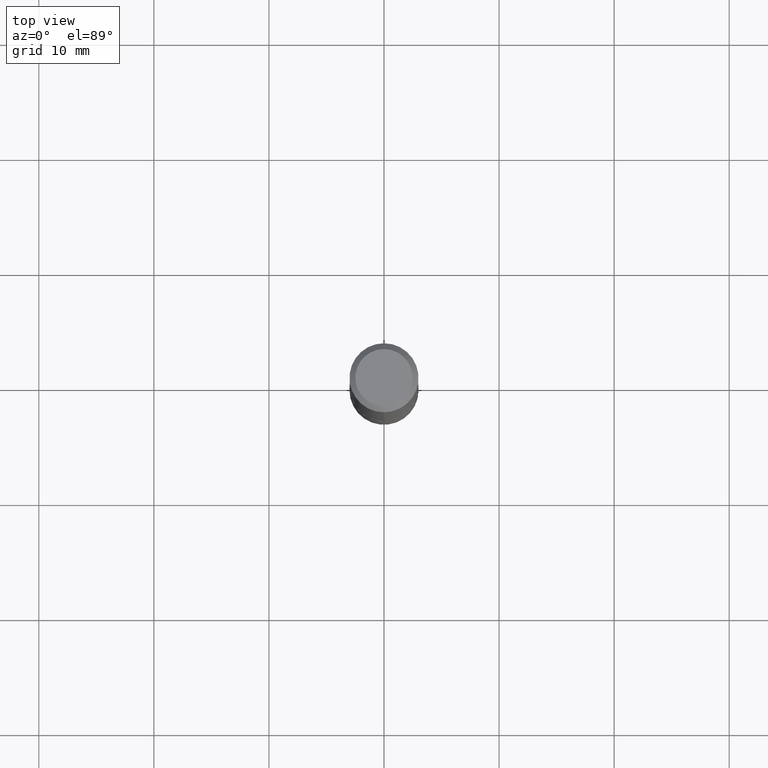
[diagram: clean part render]
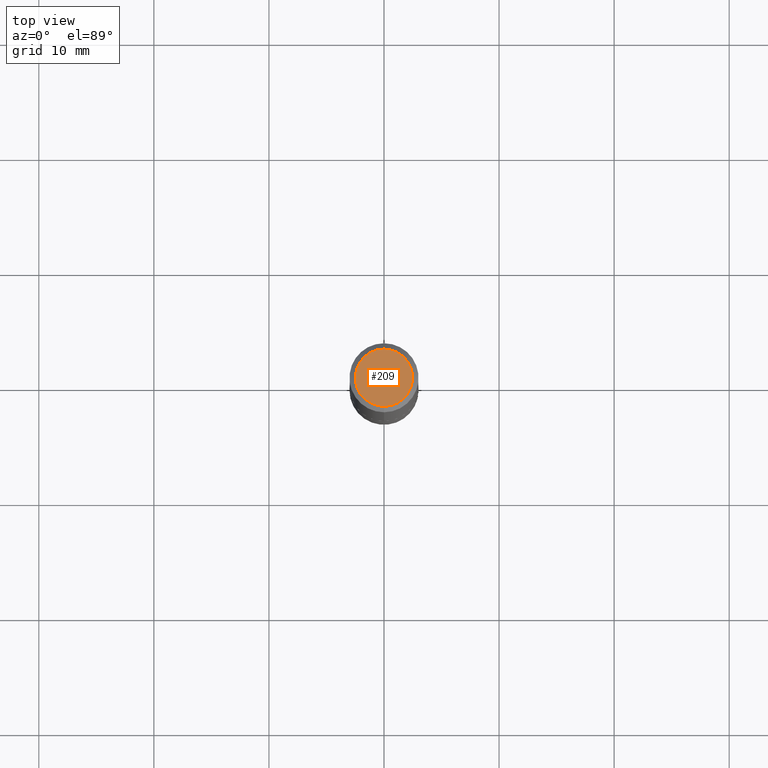
[diagram: same view with one face highlighted and labeled with its STEP entity id]
A machine part, top view. The second image highlights one B-rep face of the part: STEP entity #209.
In plain terms, the highlighted planar face has unit normal (0, -0, -1).
Its self-contained STEP definition (entity closure, byte-faithful):
#31 = VERTEX_POINT ( 'NONE', #214 ) ;
#46 = CARTESIAN_POINT ( 'NONE',  ( 7.548582654578847672E-16, 0.09809999999999975684, -8.213505744438662948E-17 ) ) ;
#49 = DIRECTION ( 'NONE',  ( 6.982962677686265922E-15, 1.000000000000000000, -3.494674881071397310E-15 ) ) ;
#57 = DIRECTION ( 'NONE',  ( -2.443238767566187138E-29, 3.494674881071396916E-15, 1.000000000000000000 ) ) ;
#83 = DIRECTION ( 'NONE',  ( 2.443238767566186578E-29, -3.494674881071397310E-15, -1.000000000000000000 ) ) ;
#97 = VERTEX_POINT ( 'NONE', #46 ) ;
#103 = EDGE_LOOP ( 'NONE', ( #212, #339 ) ) ;
#141 = CIRCLE ( 'NONE', #379, 0.09809999999999975684 ) ;
#178 = AXIS2_PLACEMENT_3D ( 'NONE', #188, #83, #49 ) ;
#188 = CARTESIAN_POINT ( 'NONE',  ( 6.850286386810209760E-16, 0.09809999999999975684, -2.124813316387448711E-16 ) ) ;
#193 = DIRECTION ( 'NONE',  ( -6.982962677686265922E-15, -1.000000000000000000, 3.494674881071397705E-15 ) ) ;
#209 = ADVANCED_FACE ( 'NONE', ( #224 ), #222, .F. ) ;
#212 = ORIENTED_EDGE ( 'NONE', *, *, #249, .T. ) ;
#214 = CARTESIAN_POINT ( 'NONE',  ( -7.416198335591014190E-16, -0.09809999999999975684, 6.035201542218197439E-16 ) ) ;
#222 = PLANE ( 'NONE',  #178 ) ;
#224 = FACE_OUTER_BOUND ( 'NONE', #103, .T. ) ;
#234 = DIRECTION ( 'NONE',  ( -6.982962677686265922E-15, -1.000000000000000000, 3.494674881071397705E-15 ) ) ;
#249 = EDGE_CURVE ( 'NONE', #97, #31, #141, .T. ) ;
#266 = CARTESIAN_POINT ( 'NONE',  ( -6.369341406389364514E-45, 9.110357005365375257E-31, 2.606925483887165818E-16 ) ) ;
#289 = CARTESIAN_POINT ( 'NONE',  ( -6.369341406389364514E-45, 9.110357005365375257E-31, 2.606925483887165818E-16 ) ) ;
#293 = AXIS2_PLACEMENT_3D ( 'NONE', #289, #387, #193 ) ;
#339 = ORIENTED_EDGE ( 'NONE', *, *, #415, .T. ) ;
#352 = CIRCLE ( 'NONE', #293, 0.09809999999999975684 ) ;
#379 = AXIS2_PLACEMENT_3D ( 'NONE', #266, #57, #234 ) ;
#387 = DIRECTION ( 'NONE',  ( -2.443238767566187138E-29, 3.494674881071396916E-15, 1.000000000000000000 ) ) ;
#415 = EDGE_CURVE ( 'NONE', #31, #97, #352, .T. ) ;